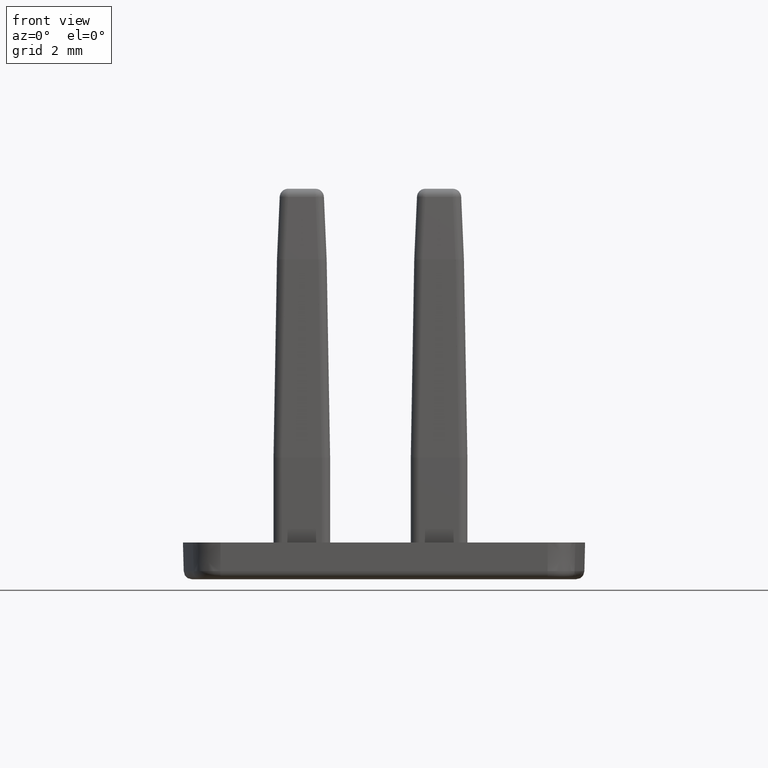
[diagram: clean part render]
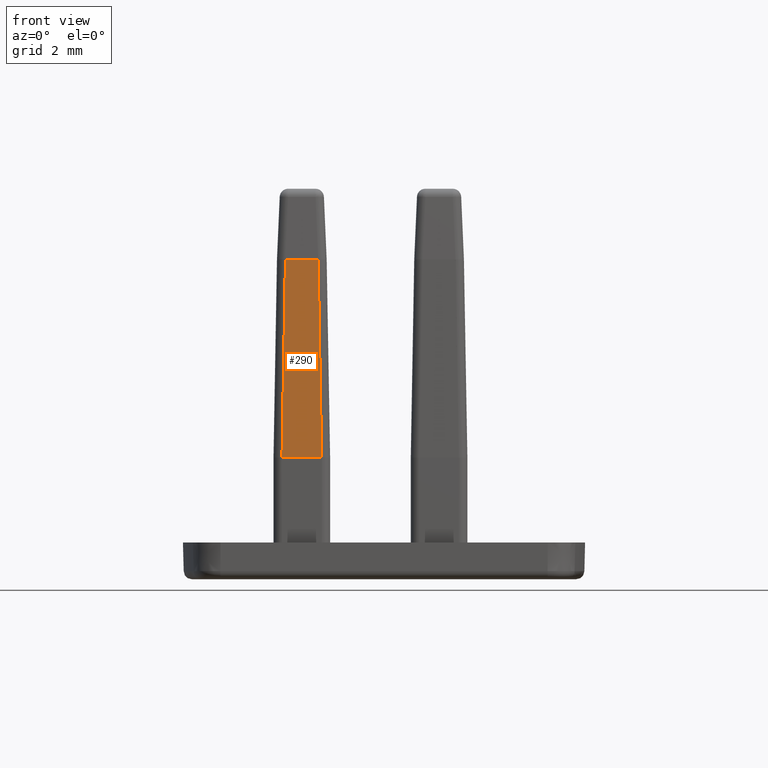
[diagram: same view with one face highlighted and labeled with its STEP entity id]
A machine part, front view. The second image highlights one B-rep face of the part: STEP entity #290.
In plain terms, the highlighted planar face has unit normal (-0, -0.9998, 0.0175).
Its self-contained STEP definition (entity closure, byte-faithful):
#5 = EDGE_CURVE ( 'NONE', #3369, #3469, #3733, .T. ) ;
#11 = EDGE_CURVE ( 'NONE', #3469, #3482, #3796, .T. ) ;
#16 = EDGE_CURVE ( 'NONE', #3378, #3369, #3821, .T. ) ;
#30 = EDGE_CURVE ( 'NONE', #3440, #3396, #3831, .T. ) ;
#49 = EDGE_CURVE ( 'NONE', #3440, #3482, #3905, .T. ) ;
#76 = EDGE_CURVE ( 'NONE', #3378, #3396, #3960, .T. ) ;
#290 = ADVANCED_FACE ( 'NONE', ( #2552 ), #2553, .T. ) ;
#583 = VECTOR ( 'NONE', #3850, 1000.000000000000000 ) ;
#599 = VECTOR ( 'NONE', #3773, 1000.000000000000000 ) ;
#603 = VECTOR ( 'NONE', #3777, 1000.000000000000000 ) ;
#614 = VECTOR ( 'NONE', #3818, 1000.000000000000000 ) ;
#640 = VECTOR ( 'NONE', #4014, 1000.000000000000000 ) ;
#643 = VECTOR ( 'NONE', #3915, 1000.000000000000000 ) ;
#1191 = CARTESIAN_POINT ( 'NONE',  ( -240.5759196216745000, -19.96165870086139900, -33.20464550397124300 ) ) ;
#1237 = CARTESIAN_POINT ( 'NONE',  ( -240.5758732483810100, -19.96165870086139900, -33.20464550397124300 ) ) ;
#1265 = CARTESIAN_POINT ( 'NONE',  ( -240.6998914811644900, -19.83764046454575000, -26.09964550397135200 ) ) ;
#1296 = CARTESIAN_POINT ( 'NONE',  ( -241.9969659984995200, -19.96165870086139900, -33.20464550397124300 ) ) ;
#1326 = CARTESIAN_POINT ( 'NONE',  ( -241.8729477621850200, -19.83764046454575000, -26.09964550397135200 ) ) ;
#1335 = CARTESIAN_POINT ( 'NONE',  ( -241.9969196216744900, -19.96165870086139900, -33.20464550397124300 ) ) ;
#2549 = DIRECTION ( 'NONE',  ( 1.218695027877500400E-016, 0.01745240643739455800, 0.9998476951563893800 ) ) ;
#2552 = FACE_OUTER_BOUND ( 'NONE', #3569, .T. ) ;
#2553 = PLANE ( 'NONE',  #4905 ) ;
#2559 = CARTESIAN_POINT ( 'NONE',  ( -242.3014196216744800, -19.96165870086139900, -33.20464550397124300 ) ) ;
#2561 = DIRECTION ( 'NONE',  ( -6.981899138647712000E-015, -0.9998476951563893800, 0.01745240643739455800 ) ) ;
#2725 = ORIENTED_EDGE ( 'NONE', *, *, #30, .F. ) ;
#2726 = ORIENTED_EDGE ( 'NONE', *, *, #16, .F. ) ;
#2738 = ORIENTED_EDGE ( 'NONE', *, *, #49, .T. ) ;
#2780 = ORIENTED_EDGE ( 'NONE', *, *, #76, .T. ) ;
#2797 = ORIENTED_EDGE ( 'NONE', *, *, #11, .F. ) ;
#2818 = ORIENTED_EDGE ( 'NONE', *, *, #5, .F. ) ;
#3369 = VERTEX_POINT ( 'NONE', #1191 ) ;
#3378 = VERTEX_POINT ( 'NONE', #1237 ) ;
#3396 = VERTEX_POINT ( 'NONE', #1265 ) ;
#3440 = VERTEX_POINT ( 'NONE', #1326 ) ;
#3469 = VERTEX_POINT ( 'NONE', #1335 ) ;
#3482 = VERTEX_POINT ( 'NONE', #1296 ) ;
#3569 = EDGE_LOOP ( 'NONE', ( #2726, #2780, #2725, #2738, #2797, #2818 ) ) ;
#3733 = LINE ( 'NONE', #3739, #599 ) ;
#3739 = CARTESIAN_POINT ( 'NONE',  ( -240.2714196216745100, -19.96165870086139900, -33.20464550397124300 ) ) ;
#3773 = DIRECTION ( 'NONE',  ( -1.000000000000000000, 6.982962677686270700E-015, -3.876322972433140000E-028 ) ) ;
#3777 = DIRECTION ( 'NONE',  ( -1.000000000000000000, 6.982962677686270700E-015, -3.876322972433140000E-028 ) ) ;
#3786 = CARTESIAN_POINT ( 'NONE',  ( -240.2714196216745100, -19.96165870086139900, -33.20464550397124300 ) ) ;
#3796 = LINE ( 'NONE', #3786, #603 ) ;
#3810 = CARTESIAN_POINT ( 'NONE',  ( -240.2714196216745100, -19.96165870086139900, -33.20464550397124300 ) ) ;
#3815 = CARTESIAN_POINT ( 'NONE',  ( -242.3014196216744800, -19.83764046454575000, -26.09964550397135200 ) ) ;
#3818 = DIRECTION ( 'NONE',  ( 1.000000000000000000, -6.982962677686270700E-015, 3.876322972433140000E-028 ) ) ;
#3821 = LINE ( 'NONE', #3810, #583 ) ;
#3831 = LINE ( 'NONE', #3815, #614 ) ;
#3850 = DIRECTION ( 'NONE',  ( -1.000000000000000000, 6.982962677686270700E-015, -3.876322972433140000E-028 ) ) ;
#3905 = LINE ( 'NONE', #3916, #643 ) ;
#3915 = DIRECTION ( 'NONE',  ( -0.01744974916068279400, -0.01744974916079359400, -0.9996954598818855700 ) ) ;
#3916 = CARTESIAN_POINT ( 'NONE',  ( -241.9970587027239900, -19.96175140508555000, -33.20995652541489600 ) ) ;
#3947 = CARTESIAN_POINT ( 'NONE',  ( -240.5763986629294800, -19.96113328278180200, -33.17454432234055200 ) ) ;
#3960 = LINE ( 'NONE', #3947, #640 ) ;
#4014 = DIRECTION ( 'NONE',  ( -0.01744974916068259300, 0.01744974916079384400, 0.9996954598818855700 ) ) ;
#4905 = AXIS2_PLACEMENT_3D ( 'NONE', #2559, #2561, #2549 ) ;